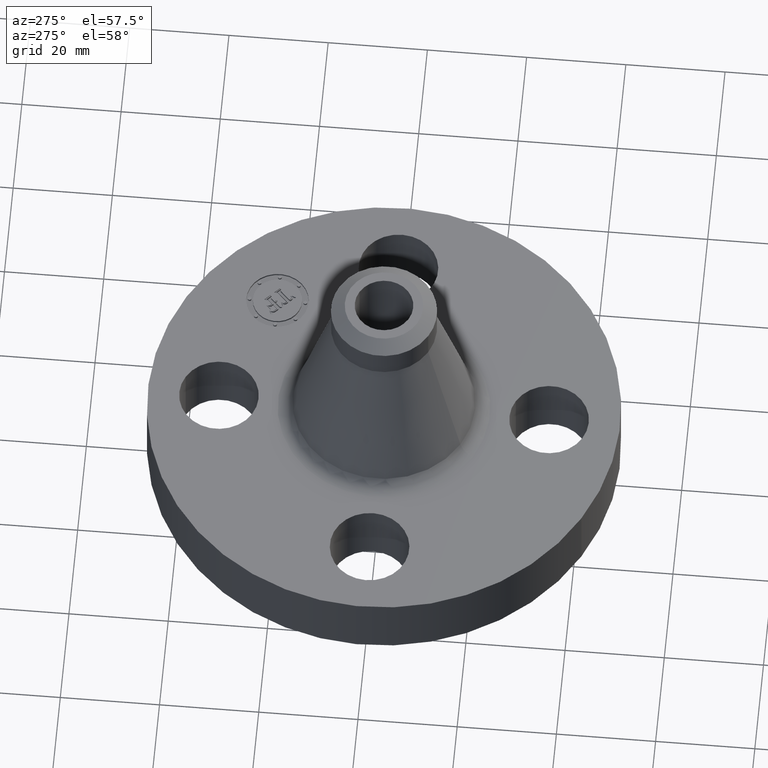
[diagram: clean part render]
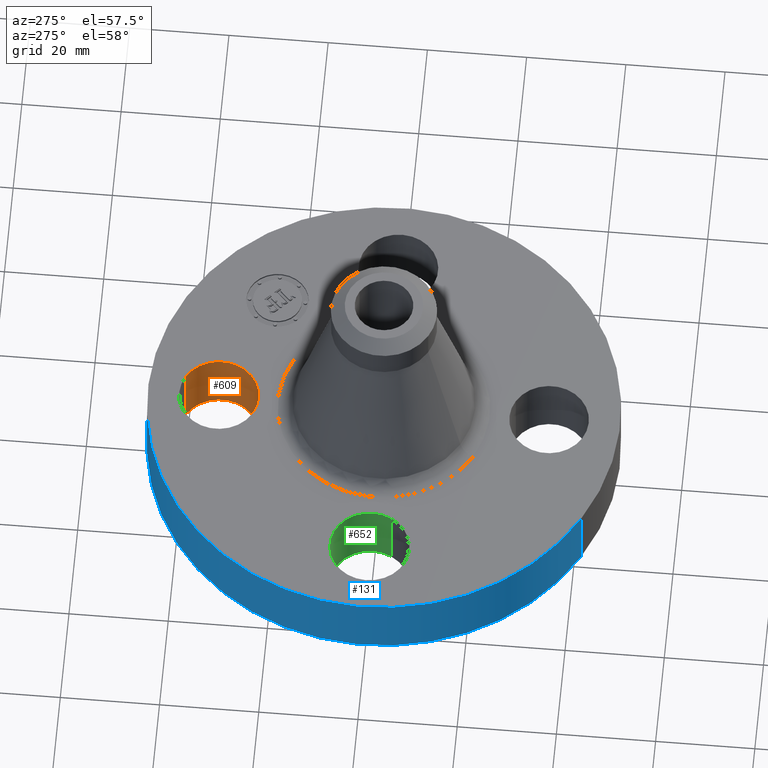
[diagram: same view with three faces highlighted in distinct colors, each labeled with its STEP entity id]
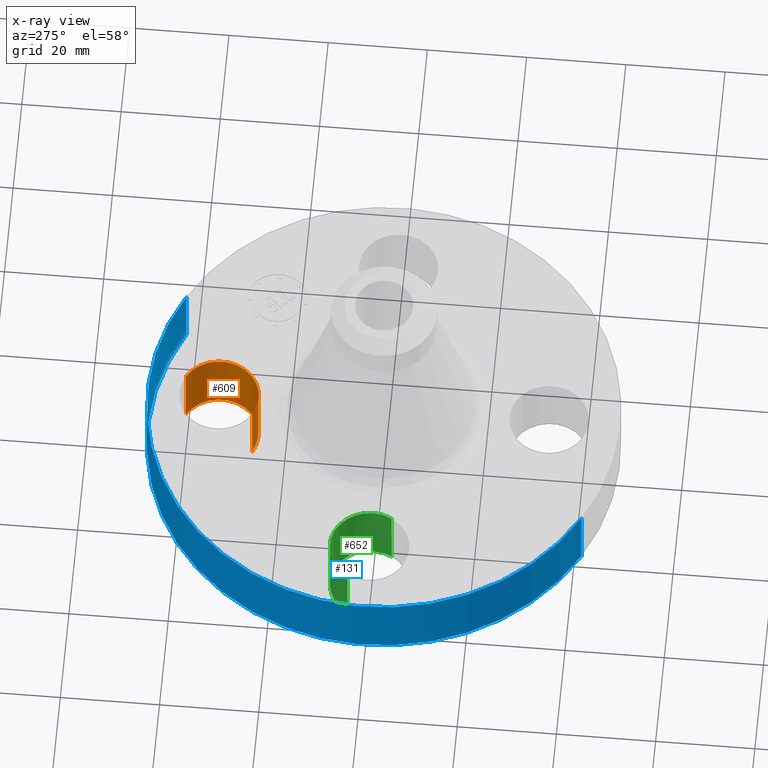
[diagram: x-ray of the same camera — body ghosted, the three highlighted faces saturated]
A machine part, auxiliary view with three faces highlighted in distinct colors.
The next image is the same camera in x-ray (body ghosted, the three faces saturated) — at least one of them is partly hidden behind the body in this view.
Their STEP definitions:

[orange] entity #609 — the highlighted cylindrical surface (partial cylindrical patch) has radius 8.001 mm, axis along (0, 0, -1).
#559=AXIS2_PLACEMENT_3D('Circle Axis2P3D',#557,#558,$) ;
#570=AXIS2_PLACEMENT_3D('Cylinder Axis2P3D',#567,#568,#569) ;
#600=AXIS2_PLACEMENT_3D('Circle Axis2P3D',#598,#599,$) ;
#552=CARTESIAN_POINT('Vertex',(-0.151019044661,1.03356149301,0.)) ;
#554=CARTESIAN_POINT('Vertex',(0.151019044661,1.586438507,6.99353086378E-017)) ;
#557=CARTESIAN_POINT('Axis2P3D Location',(-3.1470888887E-016,1.31000000001,0.)) ;
#567=CARTESIAN_POINT('Axis2P3D Location',(-2.40643096033E-016,1.31000000001,0.556062992128)) ;
#572=CARTESIAN_POINT('Line Origine',(-0.151019044661,1.03356149301,0.280000000001)) ;
#576=CARTESIAN_POINT('Vertex',(-0.151019044661,1.03356149301,0.560000000002)) ;
#579=CARTESIAN_POINT('Line Origine',(0.151019044661,1.586438507,0.280000000001)) ;
#583=CARTESIAN_POINT('Vertex',(0.151019044661,1.586438507,0.560000000002)) ;
#598=CARTESIAN_POINT('Axis2P3D Location',(-2.40643096033E-016,1.31000000001,0.560000000002)) ;
#558=DIRECTION('Axis2P3D Direction',(0.,0.,-0.0393700787402)) ;
#568=DIRECTION('Axis2P3D Direction',(0.,0.,-0.0393700787402)) ;
#569=DIRECTION('Axis2P3D XDirection',(0.0188750212049,0.0345504945626,0.)) ;
#573=DIRECTION('Vector Direction',(0.,0.,-0.0393700787402)) ;
#580=DIRECTION('Vector Direction',(0.,0.,-0.0393700787402)) ;
#599=DIRECTION('Axis2P3D Direction',(0.,0.,-0.0393700787402)) ;
#574=VECTOR('Line Direction',#573,0.0393700787402) ;
#581=VECTOR('Line Direction',#580,0.0393700787402) ;
#604=ORIENTED_EDGE('',*,*,#585,.F.) ;
#605=ORIENTED_EDGE('',*,*,#561,.T.) ;
#606=ORIENTED_EDGE('',*,*,#578,.T.) ;
#607=ORIENTED_EDGE('',*,*,#602,.F.) ;
#609=ADVANCED_FACE('PartBody',(#608),#571,.F.) ;
#560=CIRCLE('generated circle',#559,0.315000000001) ;
#601=CIRCLE('generated circle',#600,0.315000000001) ;
#571=CYLINDRICAL_SURFACE('generated cylinder',#570,0.315000000001) ;
#561=EDGE_CURVE('',#555,#553,#560,.T.) ;
#578=EDGE_CURVE('',#553,#577,#575,.F.) ;
#585=EDGE_CURVE('',#555,#584,#582,.F.) ;
#602=EDGE_CURVE('',#584,#577,#601,.T.) ;
#603=EDGE_LOOP('',(#604,#605,#606,#607)) ;
#608=FACE_OUTER_BOUND('',#603,.T.) ;
#575=LINE('Line',#572,#574) ;
#582=LINE('Line',#579,#581) ;
#553=VERTEX_POINT('',#552) ;
#555=VERTEX_POINT('',#554) ;
#577=VERTEX_POINT('',#576) ;
#584=VERTEX_POINT('',#583) ;

[blue] entity #131 — the highlighted cylindrical surface (partial cylindrical patch) has radius 47.625 mm, axis along (0, 0, -1).
#95=AXIS2_PLACEMENT_3D('Cylinder Axis2P3D',#92,#93,#94) ;
#99=AXIS2_PLACEMENT_3D('Circle Axis2P3D',#97,#98,$) ;
#115=AXIS2_PLACEMENT_3D('Circle Axis2P3D',#113,#114,$) ;
#92=CARTESIAN_POINT('Axis2P3D Location',(0.,0.,0.905000000004)) ;
#97=CARTESIAN_POINT('Axis2P3D Location',(0.,0.,0.)) ;
#101=CARTESIAN_POINT('Vertex',(-0.898922884886,-1.64546730355,0.)) ;
#103=CARTESIAN_POINT('Vertex',(0.898922884886,1.64546730355,0.)) ;
#106=CARTESIAN_POINT('Line Origine',(-0.898922884886,-1.64546730355,0.280000000001)) ;
#110=CARTESIAN_POINT('Vertex',(-0.898922884886,-1.64546730355,0.560000000002)) ;
#113=CARTESIAN_POINT('Axis2P3D Location',(0.,0.,0.560000000002)) ;
#117=CARTESIAN_POINT('Vertex',(0.898922884886,1.64546730355,0.560000000002)) ;
#120=CARTESIAN_POINT('Line Origine',(0.898922884886,1.64546730355,0.280000000001)) ;
#93=DIRECTION('Axis2P3D Direction',(0.,0.,-0.0393700787402)) ;
#94=DIRECTION('Axis2P3D XDirection',(0.0188750212049,0.0345504945626,0.)) ;
#98=DIRECTION('Axis2P3D Direction',(0.,0.,-0.0393700787402)) ;
#107=DIRECTION('Vector Direction',(0.,0.,-0.0393700787402)) ;
#114=DIRECTION('Axis2P3D Direction',(0.,0.,-0.0393700787402)) ;
#121=DIRECTION('Vector Direction',(0.,0.,-0.0393700787402)) ;
#108=VECTOR('Line Direction',#107,0.0393700787402) ;
#122=VECTOR('Line Direction',#121,0.0393700787402) ;
#126=ORIENTED_EDGE('',*,*,#105,.F.) ;
#127=ORIENTED_EDGE('',*,*,#112,.T.) ;
#128=ORIENTED_EDGE('',*,*,#119,.T.) ;
#129=ORIENTED_EDGE('',*,*,#124,.F.) ;
#131=ADVANCED_FACE('PartBody',(#130),#96,.T.) ;
#100=CIRCLE('generated circle',#99,1.87500000001) ;
#116=CIRCLE('generated circle',#115,1.87500000001) ;
#96=CYLINDRICAL_SURFACE('generated cylinder',#95,1.87500000001) ;
#105=EDGE_CURVE('',#102,#104,#100,.T.) ;
#112=EDGE_CURVE('',#102,#111,#109,.F.) ;
#119=EDGE_CURVE('',#111,#118,#116,.T.) ;
#124=EDGE_CURVE('',#104,#118,#123,.F.) ;
#125=EDGE_LOOP('',(#126,#127,#128,#129)) ;
#130=FACE_OUTER_BOUND('',#125,.T.) ;
#109=LINE('Line',#106,#108) ;
#123=LINE('Line',#120,#122) ;
#102=VERTEX_POINT('',#101) ;
#104=VERTEX_POINT('',#103) ;
#111=VERTEX_POINT('',#110) ;
#118=VERTEX_POINT('',#117) ;

[green] entity #652 — the highlighted cylindrical surface (partial cylindrical patch) has radius 8.001 mm, axis along (-0, 0, -1).
#541=AXIS2_PLACEMENT_3D('Circle Axis2P3D',#539,#540,$) ;
#613=AXIS2_PLACEMENT_3D('Cylinder Axis2P3D',#610,#611,#612) ;
#643=AXIS2_PLACEMENT_3D('Circle Axis2P3D',#641,#642,$) ;
#534=CARTESIAN_POINT('Vertex',(-1.03356149301,-0.151019044661,0.)) ;
#536=CARTESIAN_POINT('Vertex',(-1.586438507,0.151019044661,6.99353086378E-017)) ;
#539=CARTESIAN_POINT('Axis2P3D Location',(-1.31000000001,0.,0.)) ;
#610=CARTESIAN_POINT('Axis2P3D Location',(-1.31000000001,-1.60428730689E-016,0.556062992128)) ;
#615=CARTESIAN_POINT('Line Origine',(-1.03356149301,-0.151019044661,0.280000000001)) ;
#619=CARTESIAN_POINT('Vertex',(-1.03356149301,-0.151019044661,0.560000000002)) ;
#622=CARTESIAN_POINT('Line Origine',(-1.586438507,0.151019044661,0.280000000001)) ;
#626=CARTESIAN_POINT('Vertex',(-1.586438507,0.151019044661,0.560000000002)) ;
#641=CARTESIAN_POINT('Axis2P3D Location',(-1.31000000001,-1.60428730689E-016,0.560000000002)) ;
#540=DIRECTION('Axis2P3D Direction',(0.,0.,-0.0393700787402)) ;
#611=DIRECTION('Axis2P3D Direction',(-0.,0.,-0.0393700787402)) ;
#612=DIRECTION('Axis2P3D XDirection',(-0.0345504945626,0.0188750212049,0.)) ;
#616=DIRECTION('Vector Direction',(0.,0.,-0.0393700787402)) ;
#623=DIRECTION('Vector Direction',(0.,0.,-0.0393700787402)) ;
#642=DIRECTION('Axis2P3D Direction',(-0.,0.,-0.0393700787402)) ;
#617=VECTOR('Line Direction',#616,0.0393700787402) ;
#624=VECTOR('Line Direction',#623,0.0393700787402) ;
#647=ORIENTED_EDGE('',*,*,#628,.F.) ;
#648=ORIENTED_EDGE('',*,*,#543,.T.) ;
#649=ORIENTED_EDGE('',*,*,#621,.T.) ;
#650=ORIENTED_EDGE('',*,*,#645,.F.) ;
#652=ADVANCED_FACE('PartBody',(#651),#614,.F.) ;
#542=CIRCLE('generated circle',#541,0.315000000001) ;
#644=CIRCLE('generated circle',#643,0.315000000001) ;
#614=CYLINDRICAL_SURFACE('generated cylinder',#613,0.315000000001) ;
#543=EDGE_CURVE('',#537,#535,#542,.T.) ;
#621=EDGE_CURVE('',#535,#620,#618,.F.) ;
#628=EDGE_CURVE('',#537,#627,#625,.F.) ;
#645=EDGE_CURVE('',#627,#620,#644,.T.) ;
#646=EDGE_LOOP('',(#647,#648,#649,#650)) ;
#651=FACE_OUTER_BOUND('',#646,.T.) ;
#618=LINE('Line',#615,#617) ;
#625=LINE('Line',#622,#624) ;
#535=VERTEX_POINT('',#534) ;
#537=VERTEX_POINT('',#536) ;
#620=VERTEX_POINT('',#619) ;
#627=VERTEX_POINT('',#626) ;